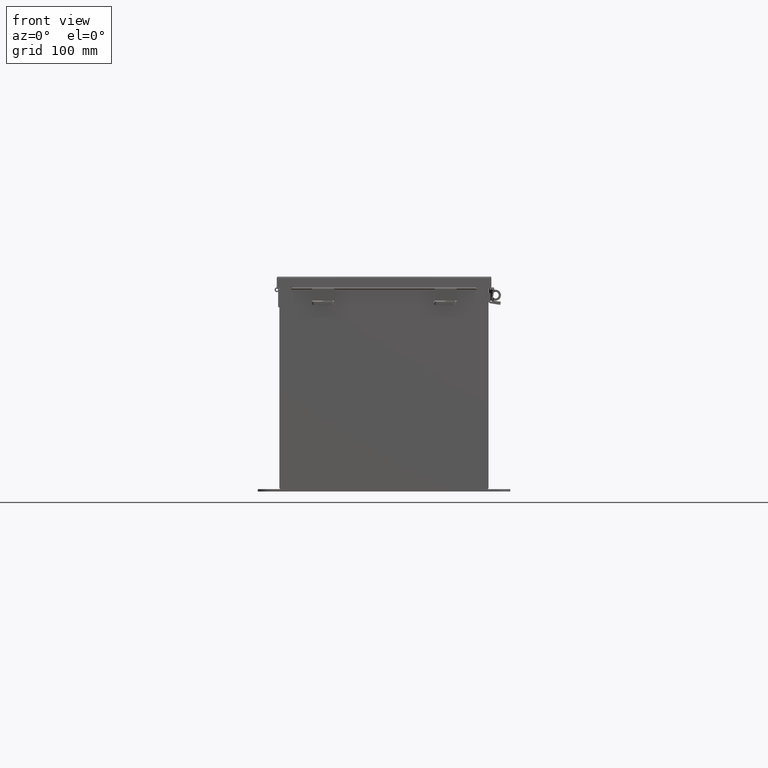
[diagram: clean part render]
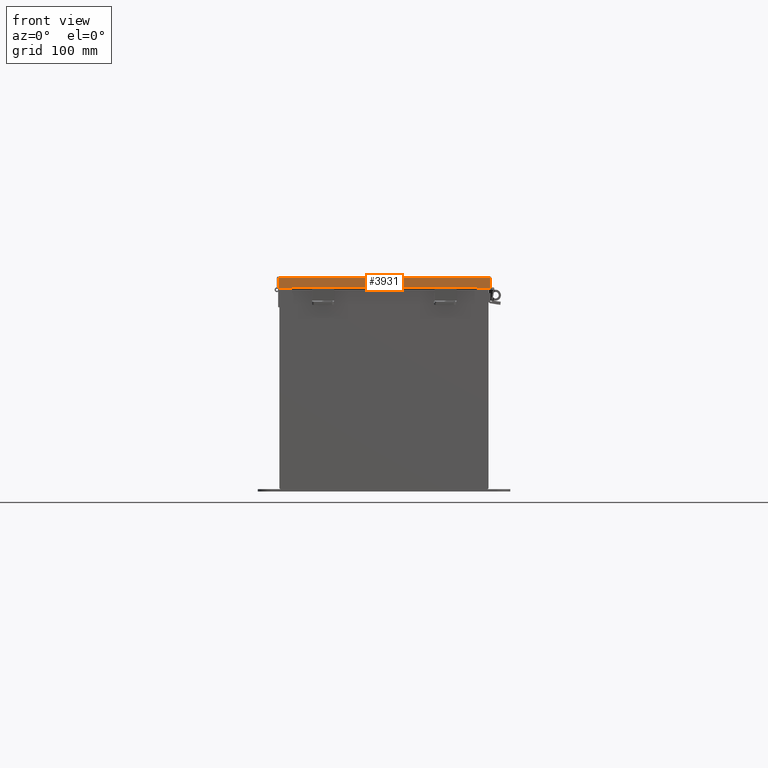
[diagram: same view with one face highlighted and labeled with its STEP entity id]
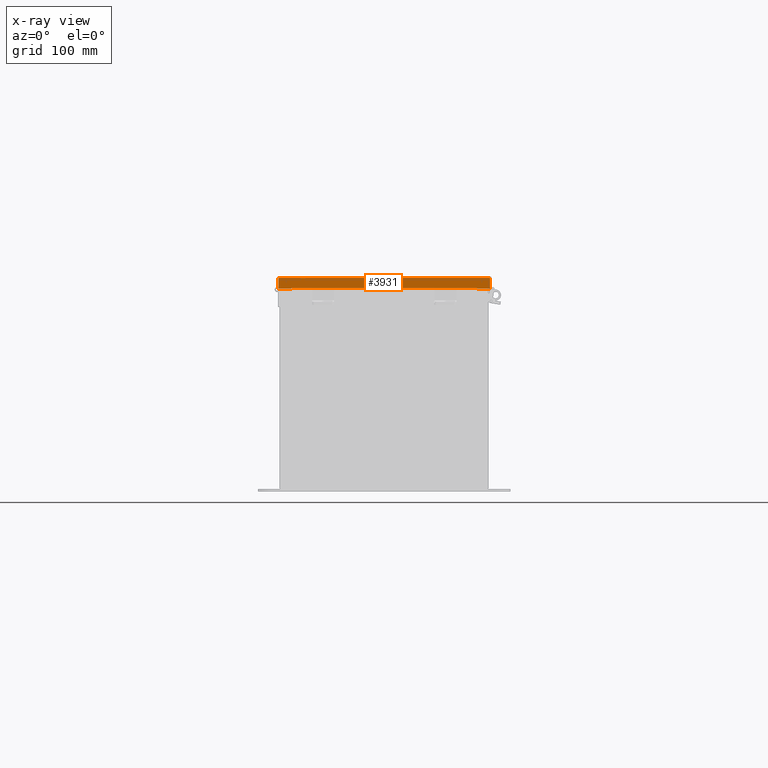
[diagram: x-ray of the same camera — body ghosted, the highlighted face saturated]
A machine part, front view. The second image highlights one B-rep face of the part: STEP entity #3931.
The next image is the same camera in x-ray: the body ghosted, the highlighted face saturated — about 0% of this face is hidden behind the body in this view.
In plain terms, the highlighted planar face has unit normal (0, 1, -0).
Its self-contained STEP definition (entity closure, byte-faithful):
#422 = ORIENTED_EDGE ( 'NONE', *, *, #10033, .F. ) ;
#1704 = VECTOR ( 'NONE', #18577, 39.37007874015748100 ) ;
#2670 = CARTESIAN_POINT ( 'NONE',  ( 5.324478932188144500, -18.15625000000000400, 0.5967115427318738800 ) ) ;
#2868 = ORIENTED_EDGE ( 'NONE', *, *, #27322, .F. ) ;
#3114 = ORIENTED_EDGE ( 'NONE', *, *, #14243, .F. ) ;
#3119 = LINE ( 'NONE', #26649, #14474 ) ;
#3143 = VERTEX_POINT ( 'NONE', #5753 ) ;
#3203 = CARTESIAN_POINT ( 'NONE',  ( 5.324478932188145400, -18.15625000000000700, 0.6122999999999960700 ) ) ;
#3691 = VERTEX_POINT ( 'NONE', #3203 ) ;
#3912 = VERTEX_POINT ( 'NONE', #10913 ) ;
#3931 = ADVANCED_FACE ( 'NONE', ( #22301 ), #4142, .F. ) ;
#4142 = PLANE ( 'NONE',  #16540 ) ;
#5365 = VECTOR ( 'NONE', #18957, 39.37007874015748100 ) ;
#5589 = VECTOR ( 'NONE', #15116, 39.37007874015748100 ) ;
#5753 = CARTESIAN_POINT ( 'NONE',  ( -5.324478932188126700, -18.15625000000000700, 0.6122999999999982900 ) ) ;
#6356 = LINE ( 'NONE', #2670, #1704 ) ;
#6435 = DIRECTION ( 'NONE',  ( 0.0000000000000000000, -3.569293475308511900E-015, 1.000000000000000000 ) ) ;
#6958 = CARTESIAN_POINT ( 'NONE',  ( -5.324478932188126700, -18.15625000000000400, 0.5967115427318782100 ) ) ;
#7278 = CARTESIAN_POINT ( 'NONE',  ( 5.324478932188144500, -18.15625000000000700, 0.5967115427318738800 ) ) ;
#7396 = LINE ( 'NONE', #21064, #12695 ) ;
#7658 = CARTESIAN_POINT ( 'NONE',  ( 4.268512490100411300E-018, -18.15625000000000700, 0.6123000000000005100 ) ) ;
#10033 = EDGE_CURVE ( 'NONE', #27740, #25037, #18932, .T. ) ;
#10623 = VERTEX_POINT ( 'NONE', #27204 ) ;
#10913 = CARTESIAN_POINT ( 'NONE',  ( -6.074478932188126700, -18.15625000000000700, 0.6122999999999982900 ) ) ;
#11409 = VERTEX_POINT ( 'NONE', #7278 ) ;
#11496 = DIRECTION ( 'NONE',  ( -1.000000000000000000, -5.290625956939934800E-030, -0.0000000000000000000 ) ) ;
#12101 = LINE ( 'NONE', #7658, #5365 ) ;
#12695 = VECTOR ( 'NONE', #23333, 39.37007874015748100 ) ;
#12876 = VECTOR ( 'NONE', #11496, 39.37007874015748100 ) ;
#13085 = DIRECTION ( 'NONE',  ( -1.000000000000000000, -5.314697260678411400E-030, 5.546899479521434700E-018 ) ) ;
#13095 = ORIENTED_EDGE ( 'NONE', *, *, #15875, .F. ) ;
#13273 = LINE ( 'NONE', #6958, #25409 ) ;
#14243 = EDGE_CURVE ( 'NONE', #3143, #10623, #18343, .T. ) ;
#14362 = ORIENTED_EDGE ( 'NONE', *, *, #19978, .T. ) ;
#14474 = VECTOR ( 'NONE', #13085, 39.37007874015748100 ) ;
#14669 = CARTESIAN_POINT ( 'NONE',  ( 6.074478932188144500, -18.15625000000000400, 0.01300000000000010700 ) ) ;
#15116 = DIRECTION ( 'NONE',  ( 7.009925220120409300E-014, 2.803970088048163700E-013, -1.000000000000000000 ) ) ;
#15774 = LINE ( 'NONE', #19888, #16483 ) ;
#15875 = EDGE_CURVE ( 'NONE', #10623, #11409, #13273, .T. ) ;
#16483 = VECTOR ( 'NONE', #28982, 39.37007874015748100 ) ;
#16540 = AXIS2_PLACEMENT_3D ( 'NONE', #26849, #20051, #6435 ) ;
#17408 = CARTESIAN_POINT ( 'NONE',  ( -5.324478932188126700, -18.15625000000000700, 0.6122999999999982900 ) ) ;
#17455 = CARTESIAN_POINT ( 'NONE',  ( -6.074478932188126700, -18.15625000000000400, 0.01299999999999792100 ) ) ;
#18230 = CARTESIAN_POINT ( 'NONE',  ( -6.156249999999989300, -18.15625000000000400, 0.01300000000000010700 ) ) ;
#18343 = LINE ( 'NONE', #17408, #5589 ) ;
#18478 = EDGE_CURVE ( 'NONE', #3143, #3912, #12101, .T. ) ;
#18577 = DIRECTION ( 'NONE',  ( 0.0000000000000000000, -2.803970088048102600E-013, 1.000000000000000000 ) ) ;
#18932 = LINE ( 'NONE', #18230, #12876 ) ;
#18957 = DIRECTION ( 'NONE',  ( -1.000000000000000000, -5.314697260678411400E-030, 5.546899479521434700E-018 ) ) ;
#19627 = EDGE_CURVE ( 'NONE', #11409, #3691, #6356, .T. ) ;
#19888 = CARTESIAN_POINT ( 'NONE',  ( -6.074478932188126700, -18.15625000000000400, -2.185478394931410600E-015 ) ) ;
#19893 = ORIENTED_EDGE ( 'NONE', *, *, #19627, .F. ) ;
#19978 = EDGE_CURVE ( 'NONE', #28222, #3691, #3119, .T. ) ;
#20051 = DIRECTION ( 'NONE',  ( 5.347688499603079700E-030, 1.000000000000000000, 3.569293475308511900E-015 ) ) ;
#20327 = EDGE_CURVE ( 'NONE', #27740, #28222, #7396, .T. ) ;
#20574 = DIRECTION ( 'NONE',  ( 1.000000000000000000, 5.315277860228091400E-030, -0.0000000000000000000 ) ) ;
#21064 = CARTESIAN_POINT ( 'NONE',  ( 6.074478932188144500, -18.15625000000000400, -6.556435184794231400E-014 ) ) ;
#22301 = FACE_OUTER_BOUND ( 'NONE', #22375, .T. ) ;
#22375 = EDGE_LOOP ( 'NONE', ( #3114, #22970, #2868, #422, #27760, #14362, #19893, #13095 ) ) ;
#22970 = ORIENTED_EDGE ( 'NONE', *, *, #18478, .T. ) ;
#23333 = DIRECTION ( 'NONE',  ( 0.0000000000000000000, -3.569293475308511900E-015, 1.000000000000000000 ) ) ;
#25037 = VERTEX_POINT ( 'NONE', #17455 ) ;
#25409 = VECTOR ( 'NONE', #20574, 39.37007874015748100 ) ;
#26649 = CARTESIAN_POINT ( 'NONE',  ( 4.268512490100411300E-018, -18.15625000000000700, 0.6123000000000005100 ) ) ;
#26849 = CARTESIAN_POINT ( 'NONE',  ( 0.0000000000000000000, -18.15625000000000400, -6.556435184794231400E-014 ) ) ;
#27204 = CARTESIAN_POINT ( 'NONE',  ( -5.324478932188125800, -18.15625000000000700, 0.5967115427318782100 ) ) ;
#27322 = EDGE_CURVE ( 'NONE', #25037, #3912, #15774, .T. ) ;
#27740 = VERTEX_POINT ( 'NONE', #14669 ) ;
#27760 = ORIENTED_EDGE ( 'NONE', *, *, #20327, .T. ) ;
#28222 = VERTEX_POINT ( 'NONE', #28239 ) ;
#28239 = CARTESIAN_POINT ( 'NONE',  ( 6.074478932188144500, -18.15625000000000700, 0.6122999999999982900 ) ) ;
#28982 = DIRECTION ( 'NONE',  ( -0.0000000000000000000, -3.569293475308511900E-015, 1.000000000000000000 ) ) ;